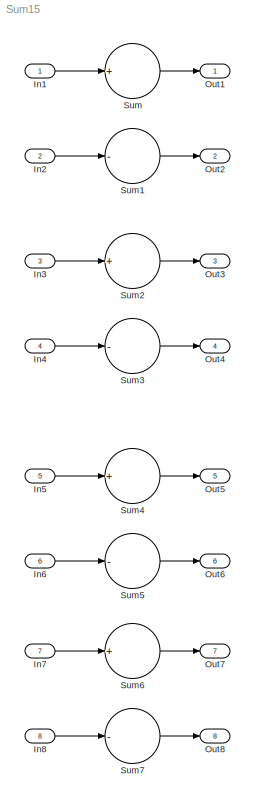
MODEL Sum15
KIND model
BLOCK [Inport] In1
  IconDisplay = Port number
  SID = 1
BLOCK [Inport] In2
  IconDisplay = Port number
  Port = 2
  SID = 2
BLOCK [Inport] In3
  IconDisplay = Port number
  Port = 3
  PortDimensions = 3
  SID = 3
BLOCK [Inport] In4
  IconDisplay = Port number
  Port = 4
  PortDimensions = 3
  SID = 4
BLOCK [Inport] In5
  IconDisplay = Port number
  Port = 5
  PortDimensions = [2 3]
  SID = 5
BLOCK [Inport] In6
  IconDisplay = Port number
  Port = 6
  PortDimensions = [2 3]
  SID = 6
BLOCK [Inport] In7
  IconDisplay = Port number
  Port = 7
  PortDimensions = [2 3]
  SID = 7
BLOCK [Inport] In8
  IconDisplay = Port number
  Port = 8
  PortDimensions = [2 3]
  SID = 8
BLOCK [Outport] Out1
  IconDisplay = Port number
  SID = 17
BLOCK [Outport] Out2
  IconDisplay = Port number
  Port = 2
  SID = 18
BLOCK [Outport] Out3
  IconDisplay = Port number
  Port = 3
  SID = 19
BLOCK [Outport] Out4
  IconDisplay = Port number
  Port = 4
  SID = 20
BLOCK [Outport] Out5
  IconDisplay = Port number
  Port = 5
  SID = 21
BLOCK [Outport] Out6
  IconDisplay = Port number
  Port = 6
  SID = 22
BLOCK [Outport] Out7
  IconDisplay = Port number
  Port = 7
  SID = 23
BLOCK [Outport] Out8
  IconDisplay = Port number
  Port = 8
  SID = 24
BLOCK [Sum] Sum
  CollapseMode = Specified dimension
  InputSameDT = off
  Inputs = +
  OutDataTypeStr = Inherit: Inherit via internal rule
  Ports = [1, 1]
  SID = 9
  SaturateOnIntegerOverflow = off
BLOCK [Sum] Sum1
  CollapseMode = Specified dimension
  InputSameDT = off
  Inputs = -
  OutDataTypeStr = Inherit: Inherit via internal rule
  Ports = [1, 1]
  SID = 10
  SaturateOnIntegerOverflow = off
BLOCK [Sum] Sum2
  CollapseMode = Specified dimension
  InputSameDT = off
  Inputs = +
  OutDataTypeStr = Inherit: Inherit via internal rule
  Ports = [1, 1]
  SID = 11
  SaturateOnIntegerOverflow = off
BLOCK [Sum] Sum3
  CollapseMode = Specified dimension
  InputSameDT = off
  Inputs = -
  OutDataTypeStr = Inherit: Inherit via internal rule
  Ports = [1, 1]
  SID = 12
  SaturateOnIntegerOverflow = off
BLOCK [Sum] Sum4
  CollapseMode = Specified dimension
  InputSameDT = off
  Inputs = +
  OutDataTypeStr = Inherit: Inherit via internal rule
  Ports = [1, 1]
  SID = 13
  SaturateOnIntegerOverflow = off
BLOCK [Sum] Sum5
  CollapseMode = Specified dimension
  InputSameDT = off
  Inputs = -
  OutDataTypeStr = Inherit: Inherit via internal rule
  Ports = [1, 1]
  SID = 14
  SaturateOnIntegerOverflow = off
BLOCK [Sum] Sum6
  CollapseDim = 2
  CollapseMode = Specified dimension
  InputSameDT = off
  Inputs = +
  OutDataTypeStr = Inherit: Inherit via internal rule
  Ports = [1, 1]
  SID = 15
  SaturateOnIntegerOverflow = off
BLOCK [Sum] Sum7
  CollapseDim = 2
  CollapseMode = Specified dimension
  InputSameDT = off
  Inputs = -
  OutDataTypeStr = Inherit: Inherit via internal rule
  Ports = [1, 1]
  SID = 16
  SaturateOnIntegerOverflow = off
LINE In1:1 -> Sum:1
LINE In2:1 -> Sum1:1
LINE In3:1 -> Sum2:1
LINE In4:1 -> Sum3:1
LINE In5:1 -> Sum4:1
LINE In6:1 -> Sum5:1
LINE In7:1 -> Sum6:1
LINE In8:1 -> Sum7:1
LINE Sum1:1 -> Out2:1
LINE Sum2:1 -> Out3:1
LINE Sum3:1 -> Out4:1
LINE Sum4:1 -> Out5:1
LINE Sum5:1 -> Out6:1
LINE Sum6:1 -> Out7:1
LINE Sum7:1 -> Out8:1
LINE Sum:1 -> Out1:1
